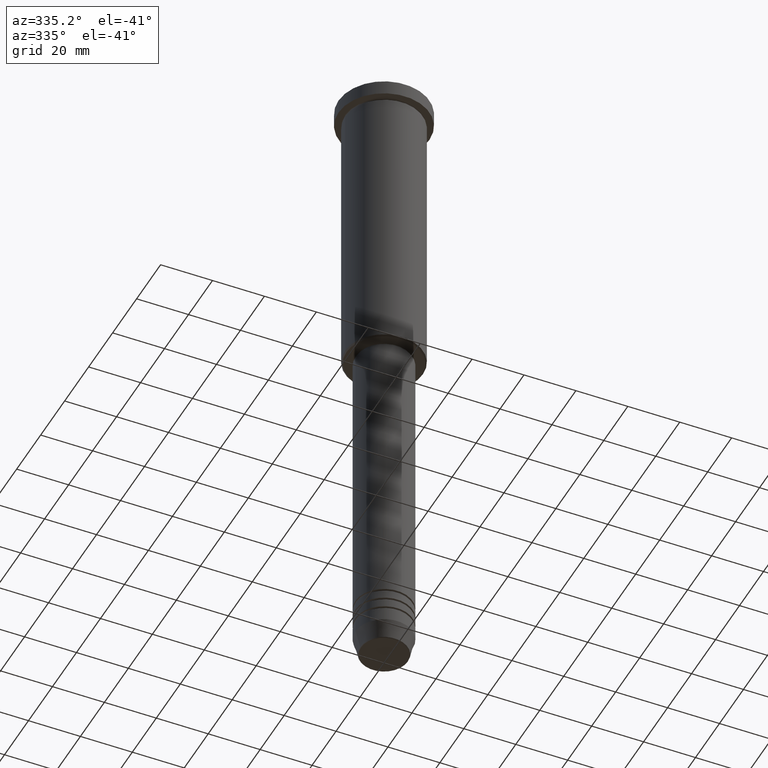
[diagram: clean part render]
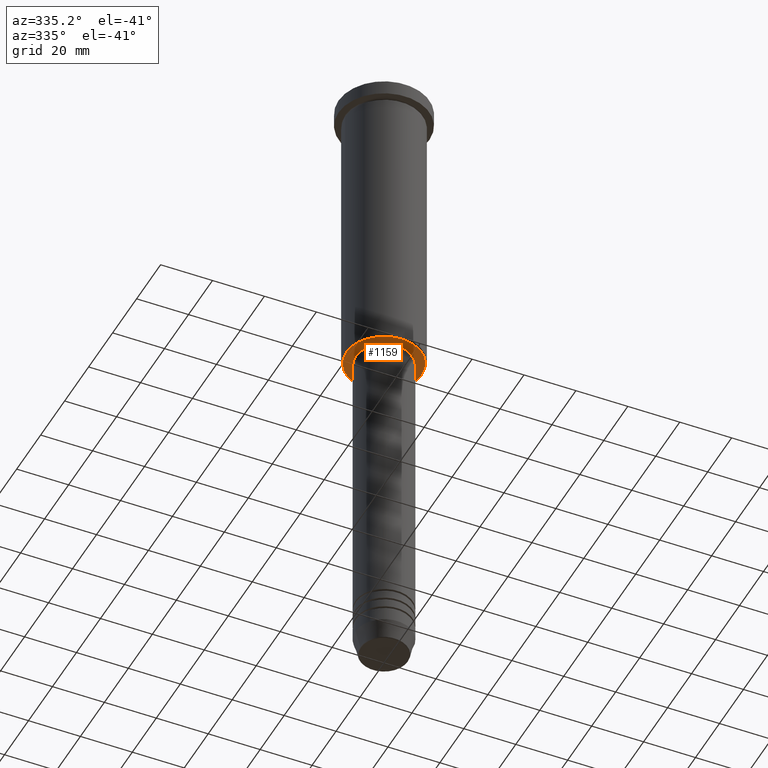
[diagram: same view with one face highlighted and labeled with its STEP entity id]
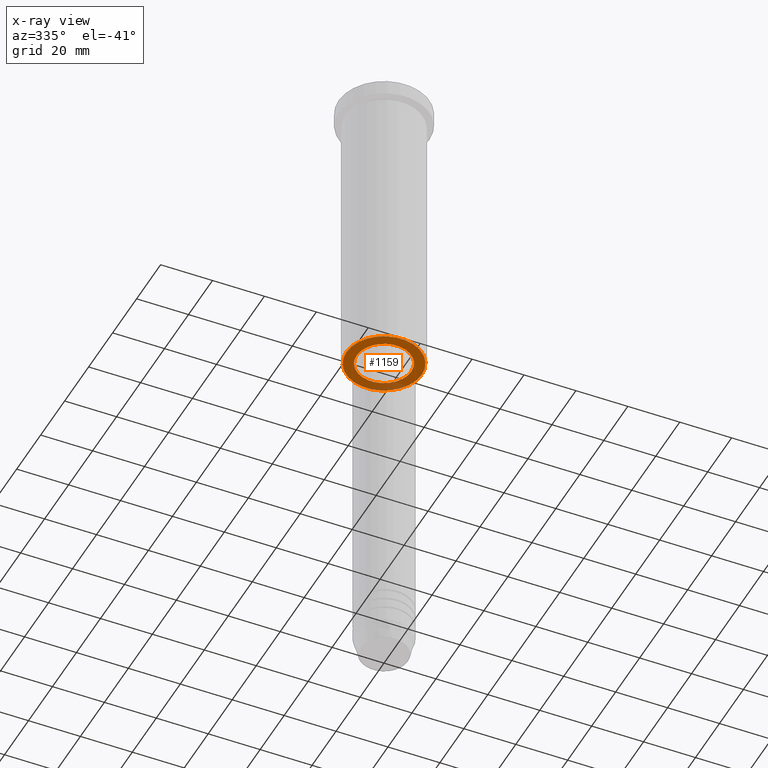
[diagram: x-ray of the same camera — body ghosted, the highlighted face saturated]
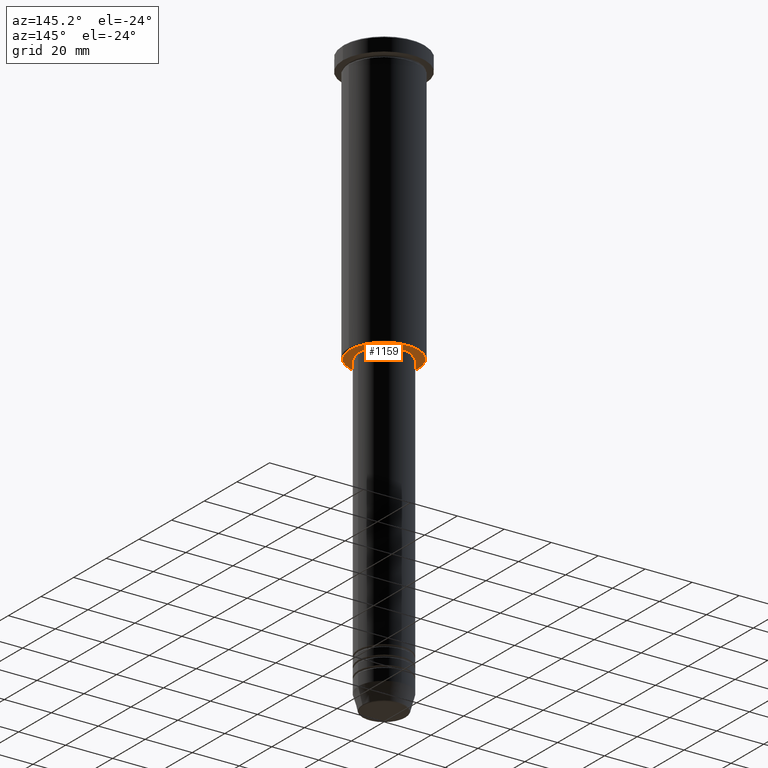
[diagram: same view with one face highlighted and labeled with its STEP entity id]
A machine part, auxiliary view. The second image highlights one B-rep face of the part: STEP entity #1159.
The next image is the same camera in x-ray: the body ghosted, the highlighted face saturated — about 15% of this face is hidden behind the body in this view.
A second angle (auxiliary view) of the same face is appended — the face is thin or edge-on in the first view.
In plain terms, the highlighted planar face has unit normal (0, 0, -1).
Its self-contained STEP definition (entity closure, byte-faithful):
#24 = AXIS2_PLACEMENT_3D ( 'NONE', #149, #55, #422 ) ;
#55 = DIRECTION ( 'NONE',  ( 0.000000000000000000, 0.000000000000000000, -1.000000000000000000 ) ) ;
#68 = VERTEX_POINT ( 'NONE', #574 ) ;
#85 = ORIENTED_EDGE ( 'NONE', *, *, #451, .T. ) ;
#97 = DIRECTION ( 'NONE',  ( 0.000000000000000000, 0.000000000000000000, -1.000000000000000000 ) ) ;
#108 = ORIENTED_EDGE ( 'NONE', *, *, #837, .T. ) ;
#148 = CARTESIAN_POINT ( 'NONE',  ( 0.000000000000000000, 0.000000000000000000, -115.9999999999999858 ) ) ;
#149 = CARTESIAN_POINT ( 'NONE',  ( 0.000000000000000000, 0.000000000000000000, -115.9999999999999858 ) ) ;
#163 = AXIS2_PLACEMENT_3D ( 'NONE', #908, #1003, #1105 ) ;
#228 = DIRECTION ( 'NONE',  ( -0.000000000000000000, -0.000000000000000000, 1.000000000000000000 ) ) ;
#264 = AXIS2_PLACEMENT_3D ( 'NONE', #1091, #97, #270 ) ;
#268 = PLANE ( 'NONE',  #264 ) ;
#270 = DIRECTION ( 'NONE',  ( -1.000000000000000000, 0.000000000000000000, -0.000000000000000000 ) ) ;
#325 = CARTESIAN_POINT ( 'NONE',  ( -14.50000000000003908, 1.806354028742348168E-15, -115.9999999999999858 ) ) ;
#339 = DIRECTION ( 'NONE',  ( 0.000000000000000000, 0.000000000000000000, -1.000000000000000000 ) ) ;
#354 = FACE_BOUND ( 'NONE', #1081, .T. ) ;
#422 = DIRECTION ( 'NONE',  ( -1.000000000000000000, 0.000000000000000000, 0.000000000000000000 ) ) ;
#451 = EDGE_CURVE ( 'NONE', #585, #68, #612, .T. ) ;
#496 = CARTESIAN_POINT ( 'NONE',  ( 14.50000000000003908, 0.000000000000000000, -115.9999999999999858 ) ) ;
#500 = CIRCLE ( 'NONE', #24, 14.50000000000003908 ) ;
#511 = ORIENTED_EDGE ( 'NONE', *, *, #605, .T. ) ;
#574 = CARTESIAN_POINT ( 'NONE',  ( 10.49999999999999822, 0.000000000000000000, -115.9999999999999858 ) ) ;
#585 = VERTEX_POINT ( 'NONE', #989 ) ;
#597 = DIRECTION ( 'NONE',  ( 1.000000000000000000, 0.000000000000000000, 0.000000000000000000 ) ) ;
#605 = EDGE_CURVE ( 'NONE', #724, #946, #913, .T. ) ;
#612 = CIRCLE ( 'NONE', #849, 10.49999999999999822 ) ;
#631 = CARTESIAN_POINT ( 'NONE',  ( 0.000000000000000000, 0.000000000000000000, -115.9999999999999858 ) ) ;
#657 = ORIENTED_EDGE ( 'NONE', *, *, #1148, .T. ) ;
#709 = DIRECTION ( 'NONE',  ( -1.000000000000000000, 0.000000000000000000, 0.000000000000000000 ) ) ;
#724 = VERTEX_POINT ( 'NONE', #325 ) ;
#745 = EDGE_LOOP ( 'NONE', ( #108, #511 ) ) ;
#821 = FACE_OUTER_BOUND ( 'NONE', #745, .T. ) ;
#837 = EDGE_CURVE ( 'NONE', #946, #724, #500, .T. ) ;
#849 = AXIS2_PLACEMENT_3D ( 'NONE', #148, #228, #597 ) ;
#857 = CIRCLE ( 'NONE', #163, 10.49999999999999822 ) ;
#908 = CARTESIAN_POINT ( 'NONE',  ( 0.000000000000000000, 0.000000000000000000, -115.9999999999999858 ) ) ;
#913 = CIRCLE ( 'NONE', #1080, 14.50000000000003908 ) ;
#946 = VERTEX_POINT ( 'NONE', #496 ) ;
#989 = CARTESIAN_POINT ( 'NONE',  ( -10.49999999999999822, 1.285879139104720633E-15, -115.9999999999999858 ) ) ;
#1003 = DIRECTION ( 'NONE',  ( -0.000000000000000000, -0.000000000000000000, 1.000000000000000000 ) ) ;
#1080 = AXIS2_PLACEMENT_3D ( 'NONE', #631, #339, #709 ) ;
#1081 = EDGE_LOOP ( 'NONE', ( #657, #85 ) ) ;
#1091 = CARTESIAN_POINT ( 'NONE',  ( 0.000000000000000000, 15.00000000000000000, -115.9999999999999858 ) ) ;
#1105 = DIRECTION ( 'NONE',  ( 1.000000000000000000, 0.000000000000000000, 0.000000000000000000 ) ) ;
#1148 = EDGE_CURVE ( 'NONE', #68, #585, #857, .T. ) ;
#1159 = ADVANCED_FACE ( 'NONE', ( #821, #354 ), #268, .T. ) ;